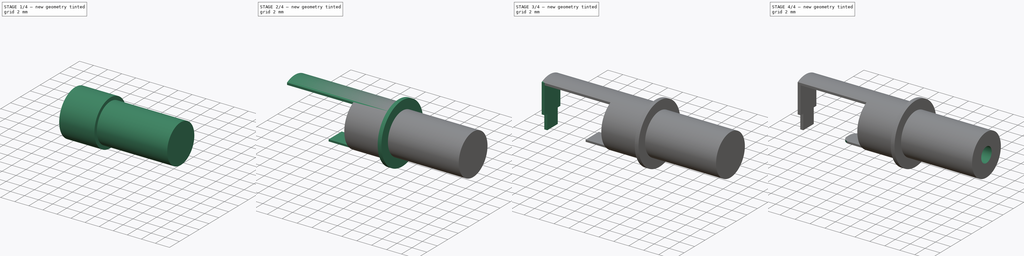
[diagram: build sequence overview — one tinted view per stage of 4, left to right]
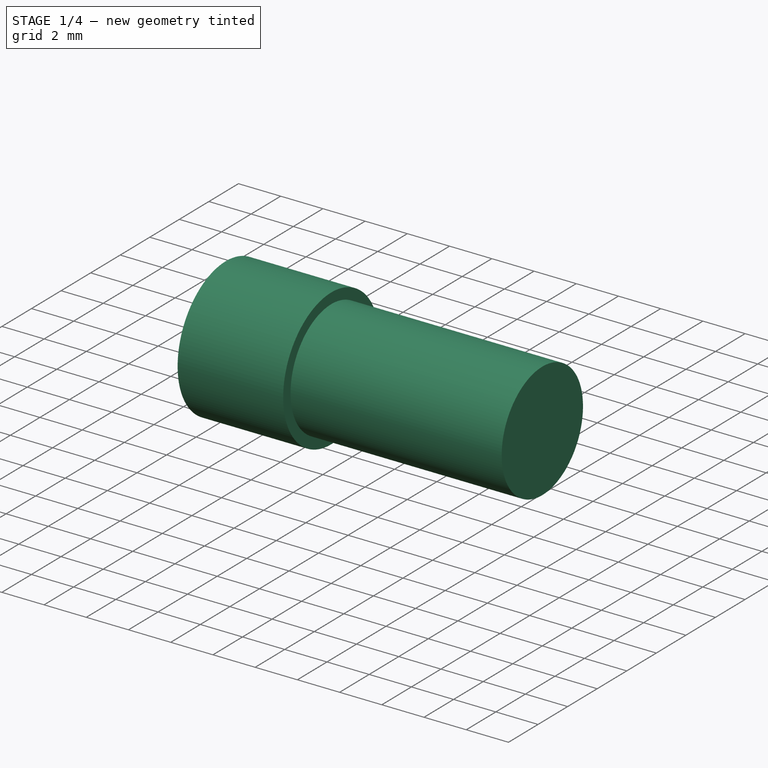
[diagram: stage 1 of 4 — iso view after this stage's code; geometry added in this stage tinted green]
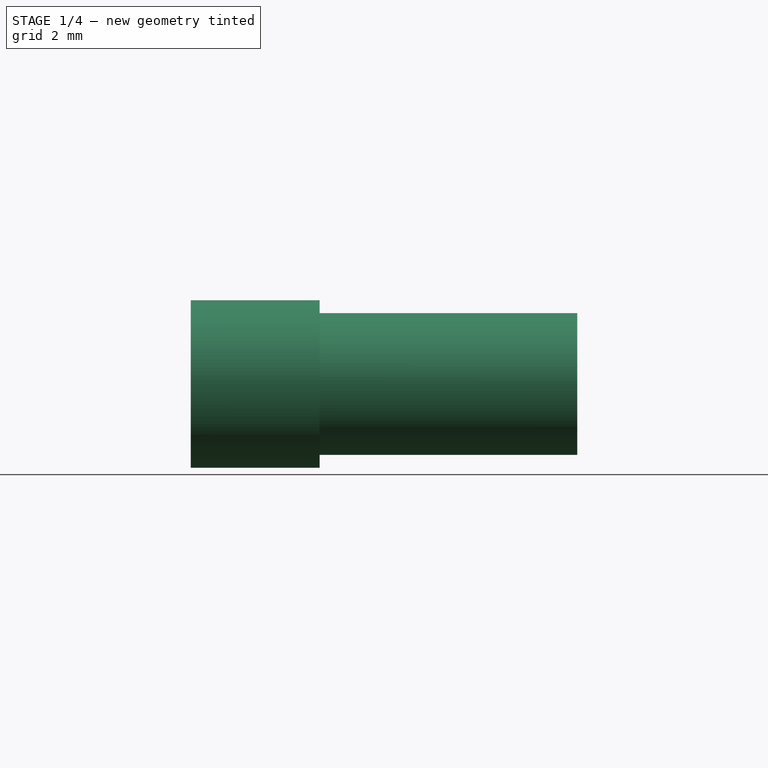
[diagram: stage 1 of 4 — front view after this stage's code; geometry added in this stage tinted green]
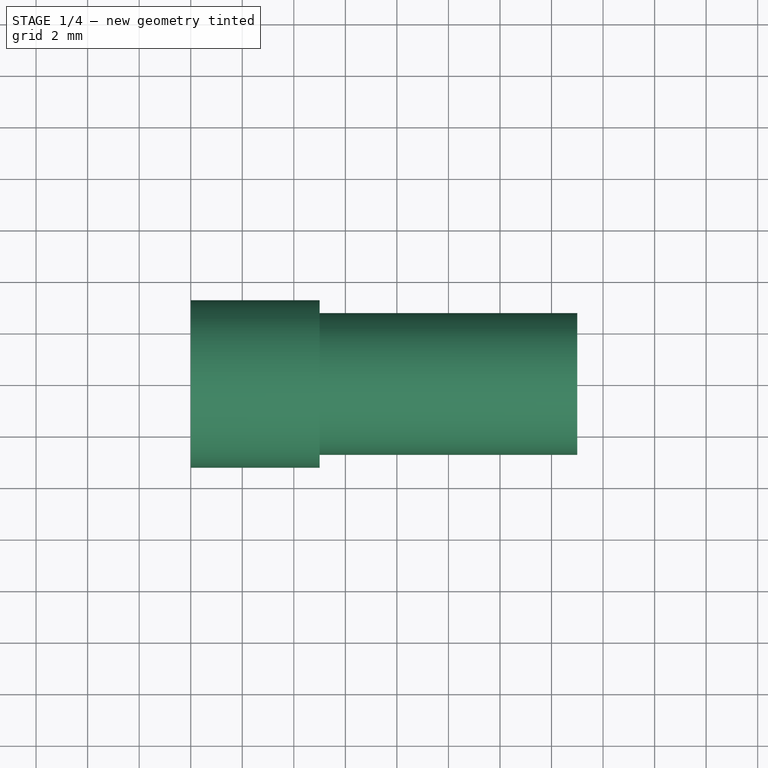
[diagram: stage 1 of 4 — top view after this stage's code; geometry added in this stage tinted green]
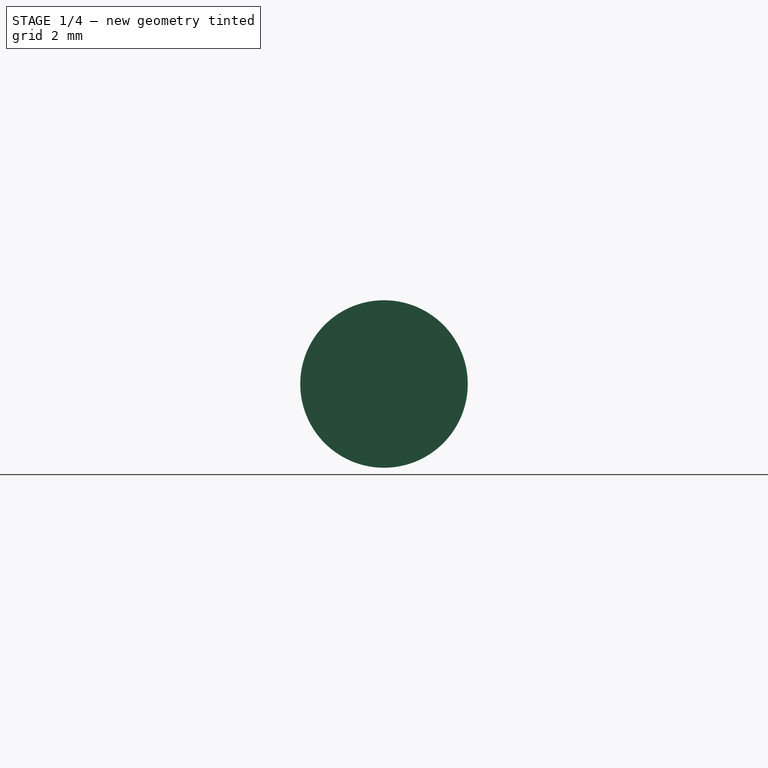
[diagram: stage 1 of 4 — right view after this stage's code; geometry added in this stage tinted green]
FCSTD DOCUMENT  (FreeCAD 1.0R38806 (Git))
Label: barrel_pd
License: All rights reserved
LicenseURL: https://en.wikipedia.org/wiki/All_rights_reserved
objects: Sketcher::SketchObject×9, PartDesign::Pad×8, Part::Feature×4, PartDesign::Pocket×1, PartDesign::Fillet×1, PartDesign::Body×1
note: 53 computed .brp shape members not serialized (recipe doc carries the construction recipe); baked Part::Feature solids carry a one-line shape summary decoded from their .brp

FEATURE [Part::Feature] anr_  label="drill_000"
  shape: bbox 1.02 x 3.02 x 1.6 mm, 10 faces (baked)
FEATURE [Part::Feature] anr_001  label="drill_001"
  shape: bbox 1.02 x 3.02 x 1.6 mm, 10 faces (baked)
FEATURE [Part::Feature] anr_002  label="drill_002"
  shape: bbox 3.02 x 1.02 x 1.6 mm, 10 faces (baked)
FEATURE [Sketcher::SketchObject] Sketch
  ArcFitTolerance = 1e-06
  AttachmentSupport = -> [YZ_Plane001]
  FullyConstrained = true
  MakeInternals = false
  MapMode = 5
  Placement = pos=(0,0,0) rot=(0.57735,0.57735,0.57735;2.0944rad)
  sketch-geometry (1):
    g0: Circle CenterX=0 CenterY=1.4 CenterZ=0 NormalX=0 NormalY=0 NormalZ=1 AngleXU=0 Radius=2.75
  constraints (3):
    c: Diameter(g0) = 5.5
    c: PointOnObject(g0,g-2)
    c: DistanceY(g-1,g0) = 1.4
FEATURE [PartDesign::Pad] Pad
  Direction = (1,0,0)
  Length = 15
  Length2 = 10
  Placement = pos=(0,0,0) rot=(1,1,1;2.0944rad)
  Profile = -> Sketch
  ReferenceAxis = -> Sketch [N_Axis]
  Refine = true
  Suppressed = false
  Type = 0
FEATURE [Sketcher::SketchObject] Sketch001
  ArcFitTolerance = 1e-06
  AttachmentSupport = -> [Pad]
  FullyConstrained = true
  MakeInternals = false
  MapMode = 5
  Placement = pos=(-3e-16,0,0) rot=(0.57735,0.57735,-0.57735;4.18879rad)
  sketch-geometry (1):
    g0: Circle CenterX=0 CenterY=-1.4 CenterZ=0 NormalX=0 NormalY=0 NormalZ=1 AngleXU=0 Radius=3.25
  constraints (3):
    c: Diameter(g0) = 6.5
    c: PointOnObject(g0,g-2)
    c: DistanceY(g0,g-1) = 1.4
FEATURE [PartDesign::Pad] Pad001
  BaseFeature = -> Pad
  Direction = (-1,0,0)
  Length = 5
  Length2 = 10
  Placement = pos=(0,0,0) rot=(1,1,1;2.0944rad)
  Profile = -> Sketch001
  ReferenceAxis = -> Sketch001 [N_Axis]
  Refine = true
  Reversed = true
  Suppressed = false
  Type = 0
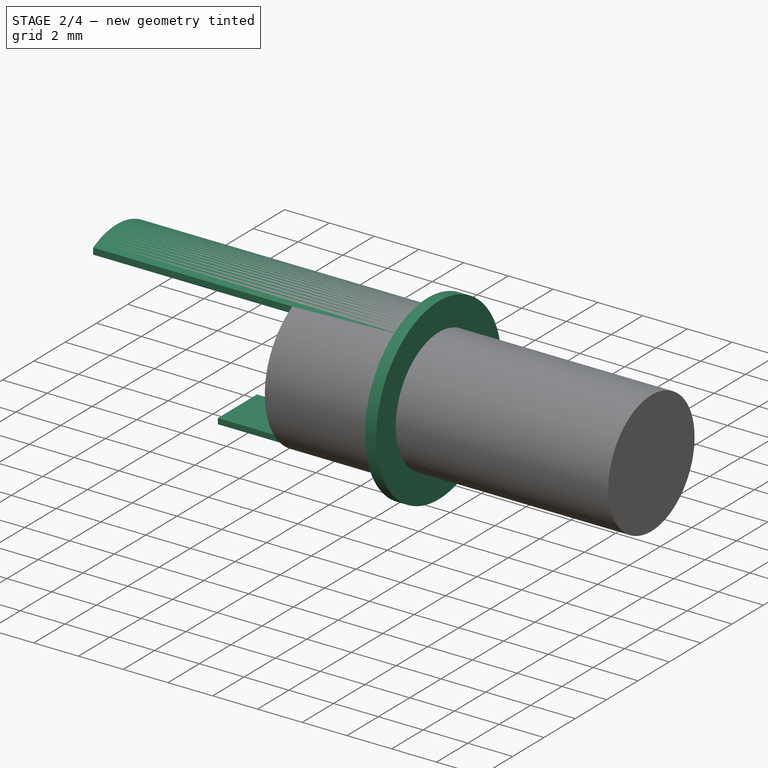
[diagram: stage 2 of 4 — iso view after this stage's code; geometry added in this stage tinted green]
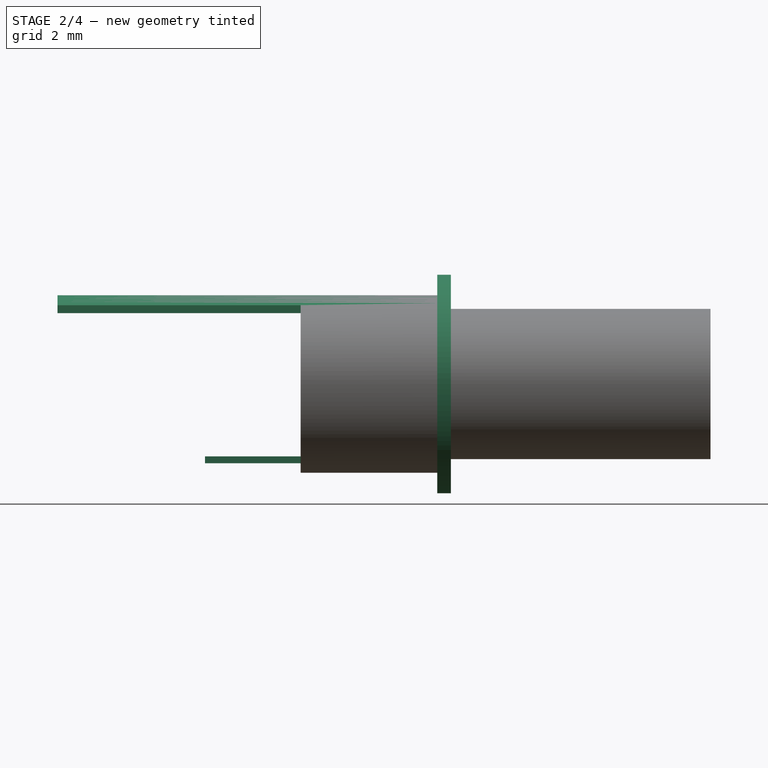
[diagram: stage 2 of 4 — front view after this stage's code; geometry added in this stage tinted green]
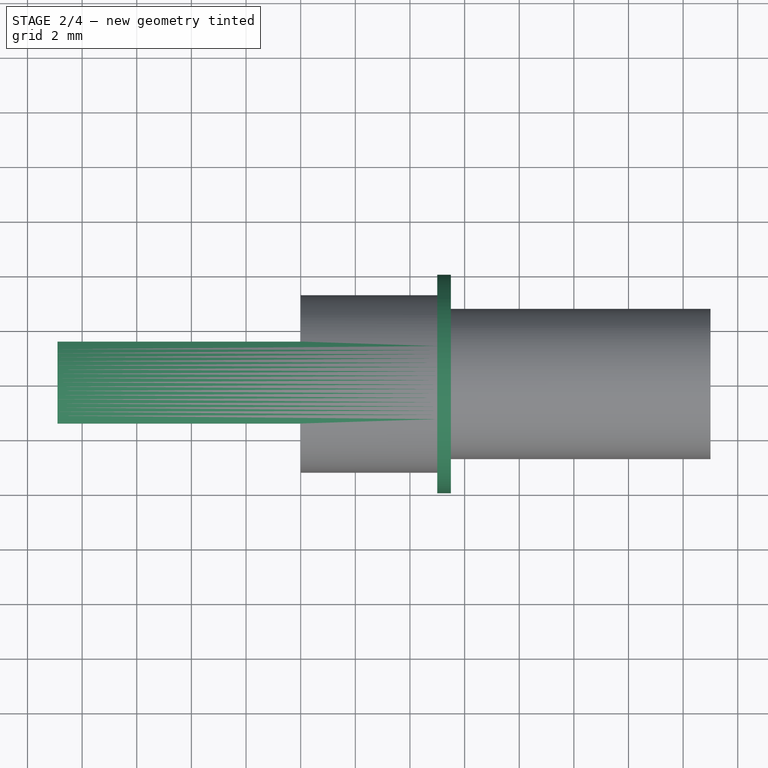
[diagram: stage 2 of 4 — top view after this stage's code; geometry added in this stage tinted green]
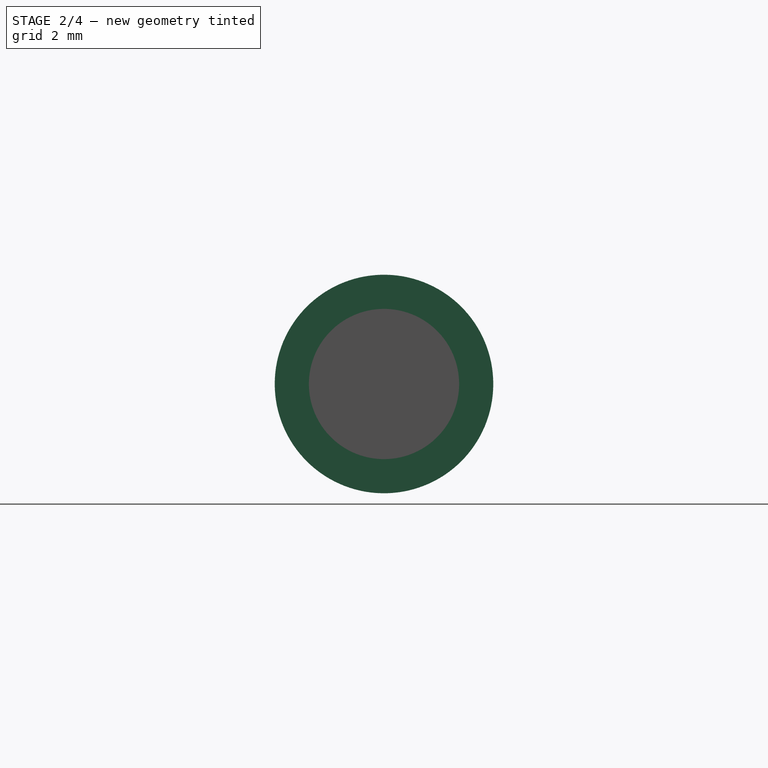
[diagram: stage 2 of 4 — right view after this stage's code; geometry added in this stage tinted green]
FEATURE [Sketcher::SketchObject] Sketch002
  ArcFitTolerance = 1e-06
  AttachmentSupport = -> [Pad001]
  FullyConstrained = true
  MakeInternals = false
  MapMode = 5
  Placement = pos=(15,-6.7e-15,3.3e-15) rot=(0.57735,0.57735,0.57735;2.0944rad)
FEATURE [Sketcher::SketchObject] Sketch003
  ArcFitTolerance = 1e-06
  AttachmentSupport = -> [Pad001]
  FullyConstrained = true
  MakeInternals = false
  MapMode = 5
  Placement = pos=(5,-1.1e-15,6e-16) rot=(0.57735,0.57735,0.57735;2.0944rad)
  sketch-geometry (1):
    g0: Circle CenterX=0 CenterY=1.4 CenterZ=0 NormalX=0 NormalY=0 NormalZ=1 AngleXU=0 Radius=4
  constraints (3):
    c: Diameter(g0) = 8
    c: PointOnObject(g0,g-2)
    c: DistanceY(g-1,g0) = 1.4
FEATURE [PartDesign::Pad] Pad002
  BaseFeature = -> Pad001
  Direction = (1,0,0)
  Length = 0.5
  Length2 = 10
  Placement = pos=(0,0,0) rot=(1,1,1;2.0944rad)
  Profile = -> Sketch003
  ReferenceAxis = -> Sketch003 [N_Axis]
  Refine = true
  Suppressed = false
  Type = 0
FEATURE [Sketcher::SketchObject] Sketch004
  ArcFitTolerance = 1e-06
  AttachmentSupport = -> [Pad002]
  FullyConstrained = true
  MakeInternals = false
  MapMode = 5
  Placement = pos=(-9e-16,0,0) rot=(0.57735,0.57735,-0.57735;4.18879rad)
  sketch-geometry (4):
    g0: LineSegment StartX=-1.25 StartY=1.25 StartZ=0 EndX=1.25 EndY=1.25 EndZ=0
    g1: LineSegment StartX=1.25 StartY=1.25 StartZ=0 EndX=1.25 EndY=1.5 EndZ=0
    g2: LineSegment StartX=1.25 StartY=1.5 StartZ=0 EndX=-1.25 EndY=1.5 EndZ=0
    g3: LineSegment StartX=-1.25 StartY=1.5 StartZ=0 EndX=-1.25 EndY=1.25 EndZ=0
  constraints (12):
    c: Coincident(g0,g1)
    c: Coincident(g1,g2)
    c: Coincident(g2,g3)
    c: Coincident(g3,g0)
    c: Horizontal(g0)
    c: Horizontal(g2)
    c: Vertical(g1)
    c: Vertical(g3)
    c: Distance(g1,g3) = 2.5
    c: Distance(g0,g2) = 0.25
    c: DistanceX(g2,g-1) = 1.25
    c: DistanceY(g-1,g0) = 1.25
FEATURE [PartDesign::Pad] Pad003
  BaseFeature = -> Pad002
  Direction = (-1,0,0)
  Length = 3.5
  Length2 = 10
  Placement = pos=(0,0,0) rot=(1,1,1;2.0944rad)
  Profile = -> Sketch004
  ReferenceAxis = -> Sketch004 [N_Axis]
  Refine = true
  Suppressed = false
  Type = 0
FEATURE [Sketcher::SketchObject] Sketch005
  ArcFitTolerance = 1e-06
  AttachmentSupport = -> [Pad003]
  FullyConstrained = true
  MakeInternals = false
  MapMode = 5
  Placement = pos=(-1.2e-15,0,0) rot=(0.57735,0.57735,-0.57735;4.18879rad)
  sketch-geometry (4):
    g0: ArcOfCircle CenterX=0 CenterY=-1.4 CenterZ=0 NormalX=0 NormalY=0 NormalZ=1 AngleXU=0 Radius=3 StartAngle=4.19007 EndAngle=5.23727
    g1: ArcOfCircle CenterX=0 CenterY=-1.4 CenterZ=0 NormalX=0 NormalY=0 NormalZ=1 AngleXU=0 Radius=3.25 StartAngle=4.23382 EndAngle=5.19327
    g2: LineSegment StartX=-1.49666 StartY=-4 StartZ=0 EndX=-1.49666 EndY=-4.28487 EndZ=0
    g3: LineSegment StartX=1.50333 StartY=-4.2814 StartZ=0 EndX=1.50333 EndY=-3.99615 EndZ=0
  constraints (14):
    c: PointOnObject(g0,g-2)
    c: DistanceY(g0,g-1) = 1.4
    c: Diameter(g0) = 6
    c: PointOnObject(g1,g-2)
    c: DistanceY(g1,g-1) = 1.4
    c: Diameter(g1) = 6.5
    c: Vertical(g2)
    c: Vertical(g3)
    c: Coincident(g1,g3)
    c: Coincident(g1,g2)
    c: Coincident(g0,g3)
    c: Coincident(g0,g2)
    c: Angle(g0) = 1.0472
    c: DistanceY(g0,g-1) = 4
FEATURE [PartDesign::Pad] Pad004
  BaseFeature = -> Pad003
  Direction = (-1,0,0)
  Length = 8.9
  Length2 = 10
  Placement = pos=(0,0,0) rot=(1,1,1;2.0944rad)
  Profile = -> Sketch005
  ReferenceAxis = -> Sketch005 [N_Axis]
  Refine = true
  Suppressed = false
  Type = 0
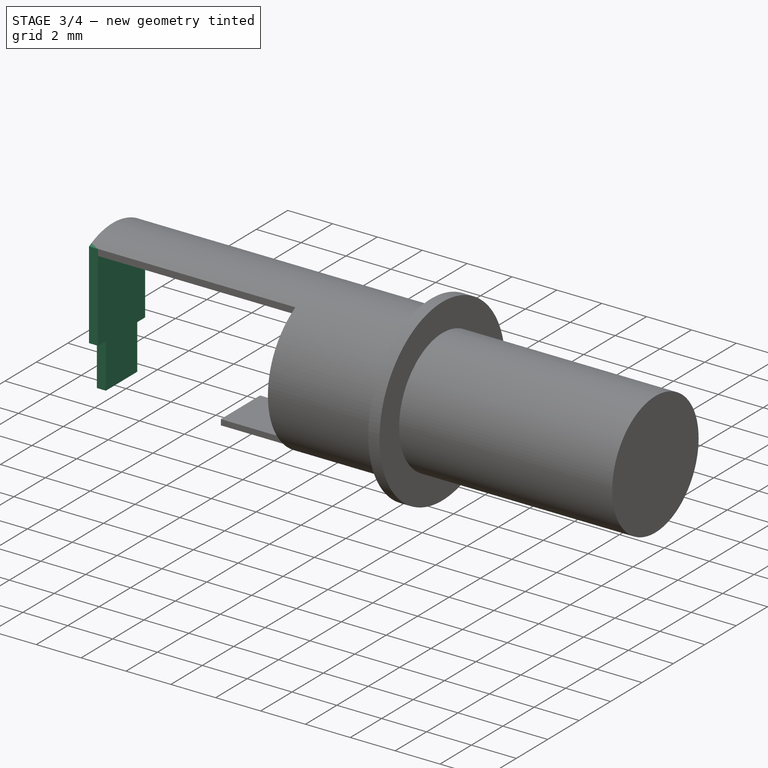
[diagram: stage 3 of 4 — iso view after this stage's code; geometry added in this stage tinted green]
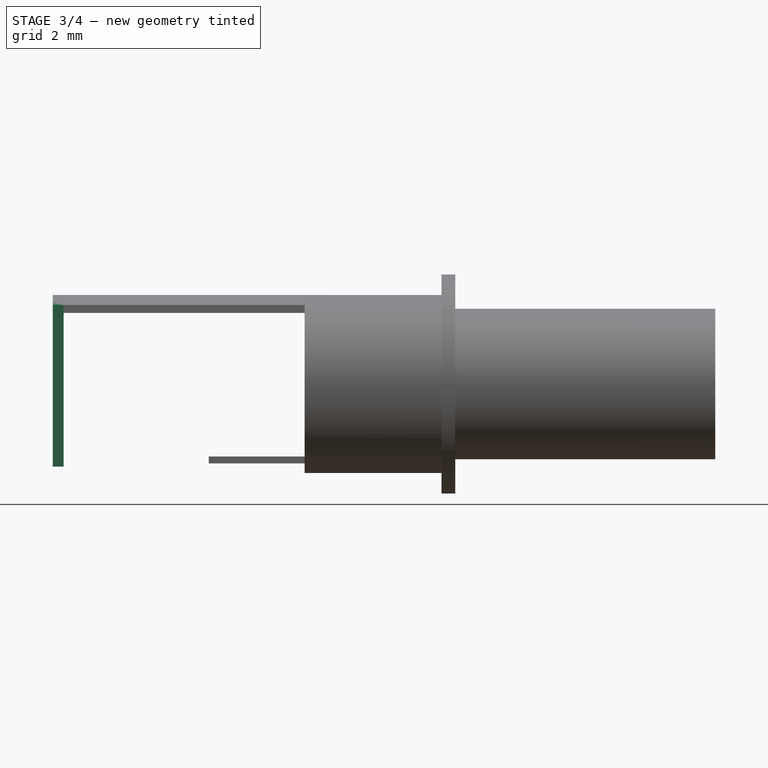
[diagram: stage 3 of 4 — front view after this stage's code; geometry added in this stage tinted green]
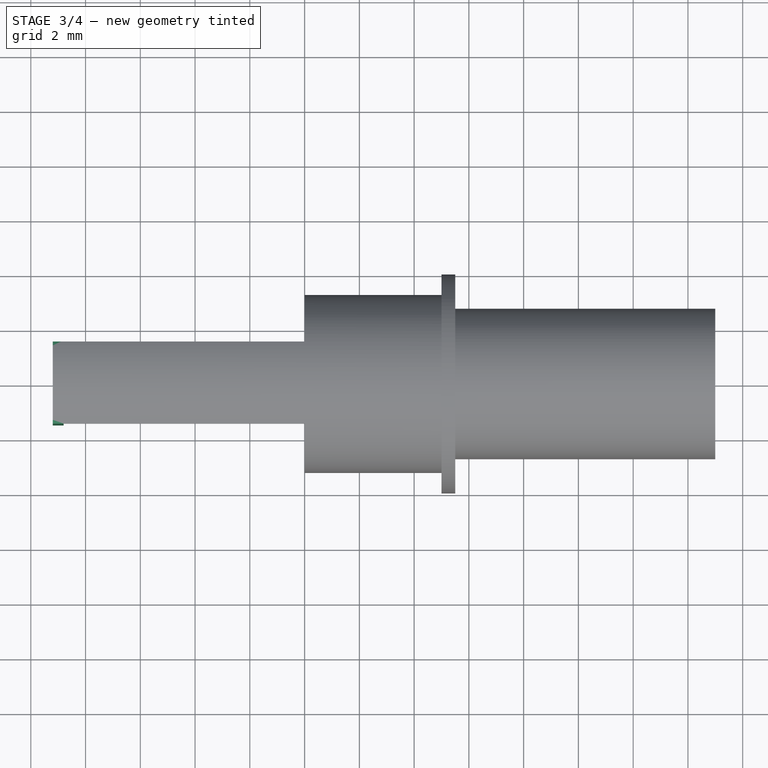
[diagram: stage 3 of 4 — top view after this stage's code; geometry added in this stage tinted green]
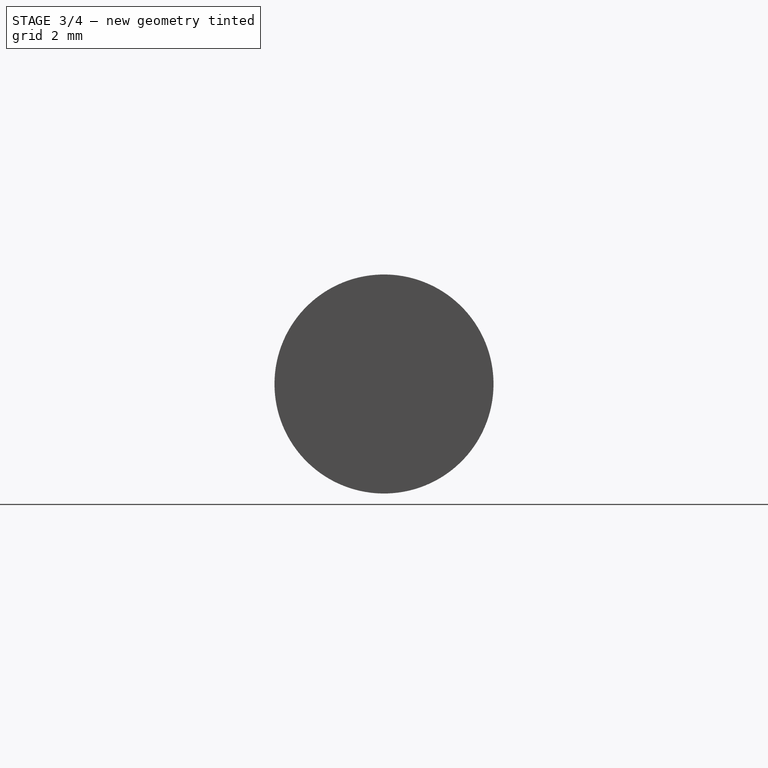
[diagram: stage 3 of 4 — right view after this stage's code; geometry added in this stage tinted green]
FEATURE [Sketcher::SketchObject] Sketch006
  ArcFitTolerance = 1e-06
  AttachmentSupport = -> [Pad004]
  FullyConstrained = true
  MakeInternals = false
  MapMode = 5
  Placement = pos=(-8.9,2e-15,-1e-15) rot=(0.57735,0.57735,-0.57735;4.18879rad)
  sketch-geometry (4):
    g0: ArcOfCircle CenterX=0 CenterY=-1.4 CenterZ=0 NormalX=0 NormalY=0 NormalZ=1 AngleXU=0 Radius=3.25 StartAngle=4.23271 EndAngle=5.19212
    g1: LineSegment StartX=1.5 StartY=-4.28314 StartZ=0 EndX=1.5 EndY=-0.383215 EndZ=0
    g2: LineSegment StartX=1.5 StartY=-0.383215 StartZ=0 EndX=-1.49986 EndY=-0.383215 EndZ=0
    g3: LineSegment StartX=-1.49986 StartY=-0.383215 StartZ=0 EndX=-1.49986 EndY=-4.28322 EndZ=0
  constraints (13):
    c: Diameter(g0) = 6.5
    c: PointOnObject(g0,g-2)
    c: DistanceY(g0,g-1) = 1.4
    c: Coincident(g1,g2)
    c: Coincident(g2,g3)
    c: Vertical(g1)
    c: Vertical(g3)
    c: Horizontal(g2)
    c: DistanceX(g-1,g1) = 1.5
    c: Coincident(g0,g1)
    c: Coincident(g0,g3)
    c: Angle(g0) = 0.959407
    c: DistanceY(g3,g3) = 3.9
FEATURE [PartDesign::Pad] Pad005
  BaseFeature = -> Pad004
  Direction = (-1,0,0)
  Length = 0.3
  Length2 = 10
  Placement = pos=(0,0,0) rot=(1,1,1;2.0944rad)
  Profile = -> Sketch006
  ReferenceAxis = -> Sketch006 [N_Axis]
  Refine = true
  Suppressed = false
  Type = 0
FEATURE [PartDesign::Pad] Pad006
  BaseFeature = -> Pad005
  Direction = (1,0,3e-16)
  Length = 0.1
  Length2 = 10
  Placement = pos=(0,0,0) rot=(1,1,1;2.0944rad)
  Profile = -> Pad005 [Face10]
  Refine = true
  Suppressed = false
  Type = 0
FEATURE [Sketcher::SketchObject] Sketch007
  ArcFitTolerance = 1e-06
  AttachmentSupport = -> [Pad006]
  FullyConstrained = true
  MakeInternals = false
  MapMode = 5
  Placement = pos=(0,3e-16,0.383215) rot=(0.707107,0.707107,0;3.14159rad)
  sketch-geometry (4):
    g0: LineSegment StartX=-1 StartY=-8.8 StartZ=0 EndX=-1 EndY=-9.2 EndZ=0
    g1: LineSegment StartX=-1 StartY=-9.2 StartZ=0 EndX=1 EndY=-9.2 EndZ=0
    g2: LineSegment StartX=1 StartY=-9.2 StartZ=0 EndX=1 EndY=-8.8 EndZ=0
    g3: LineSegment StartX=1 StartY=-8.8 StartZ=0 EndX=-1 EndY=-8.8 EndZ=0
  constraints (12):
    c: Coincident(g0,g1)
    c: Coincident(g1,g2)
    c: Coincident(g2,g3)
    c: Coincident(g3,g0)
    c: Vertical(g0)
    c: Vertical(g2)
    c: Horizontal(g1)
    c: Horizontal(g3)
    c: Distance(g0,g2) = 2
    c: Distance(g1,g3) = 0.4
    c: DistanceY(g0,g-1) = 8.8
    c: DistanceX(g0,g-1) = 1
FEATURE [PartDesign::Pad] Pad007
  BaseFeature = -> Pad006
  Direction = (0,0,-1)
  Length = 2
  Length2 = 10
  Placement = pos=(0,0,0) rot=(1,1,1;2.0944rad)
  Profile = -> Sketch007
  ReferenceAxis = -> Sketch007 [N_Axis]
  Refine = true
  Suppressed = false
  Type = 0
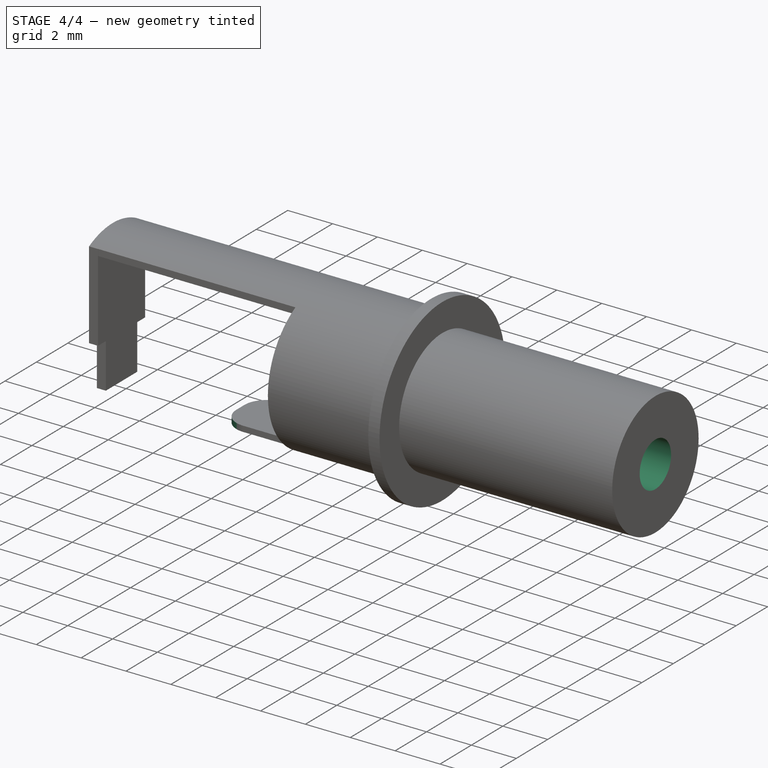
[diagram: stage 4 of 4 — iso view after this stage's code; geometry added in this stage tinted green]
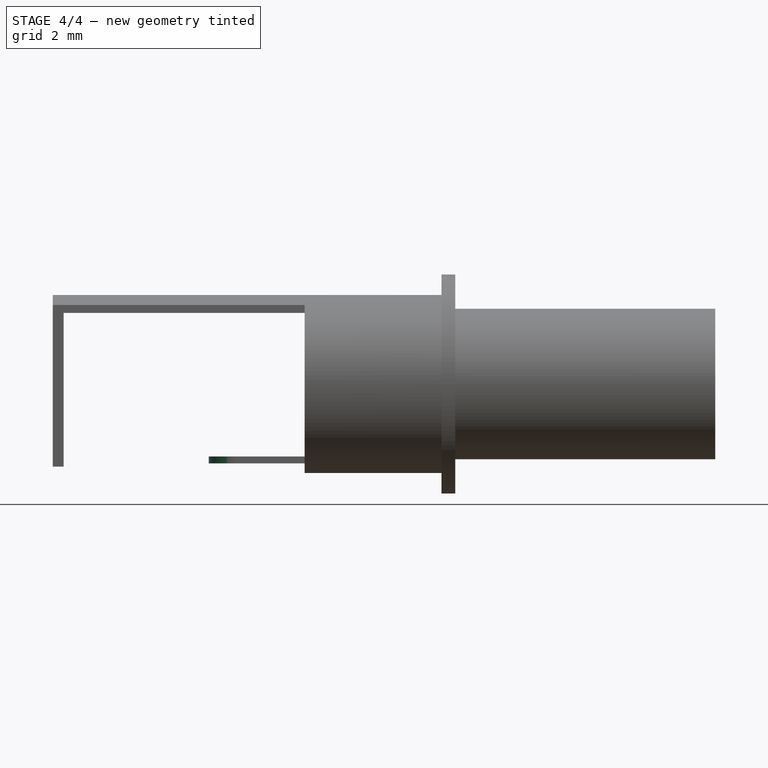
[diagram: stage 4 of 4 — front view after this stage's code; geometry added in this stage tinted green]
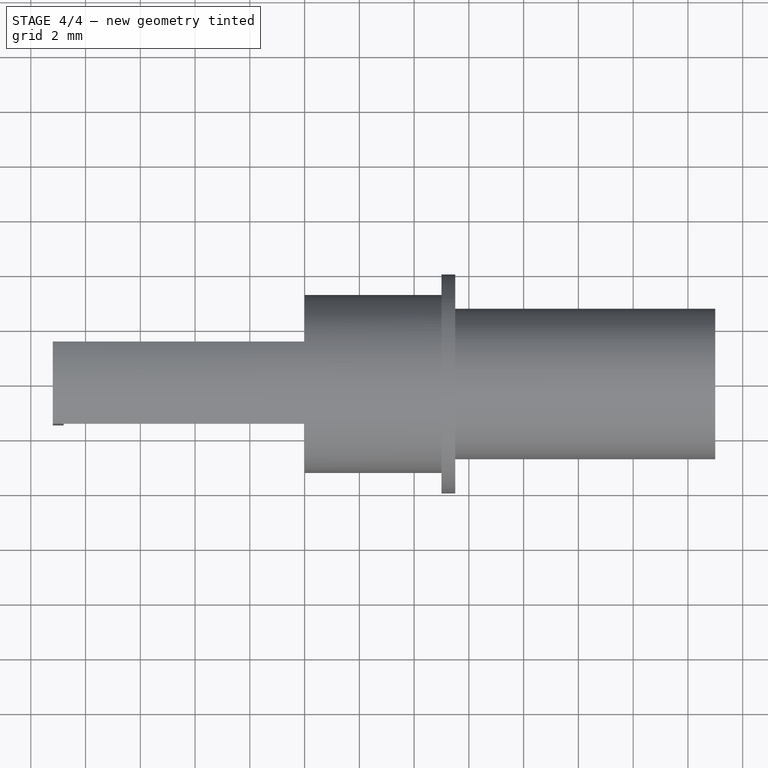
[diagram: stage 4 of 4 — top view after this stage's code; geometry added in this stage tinted green]
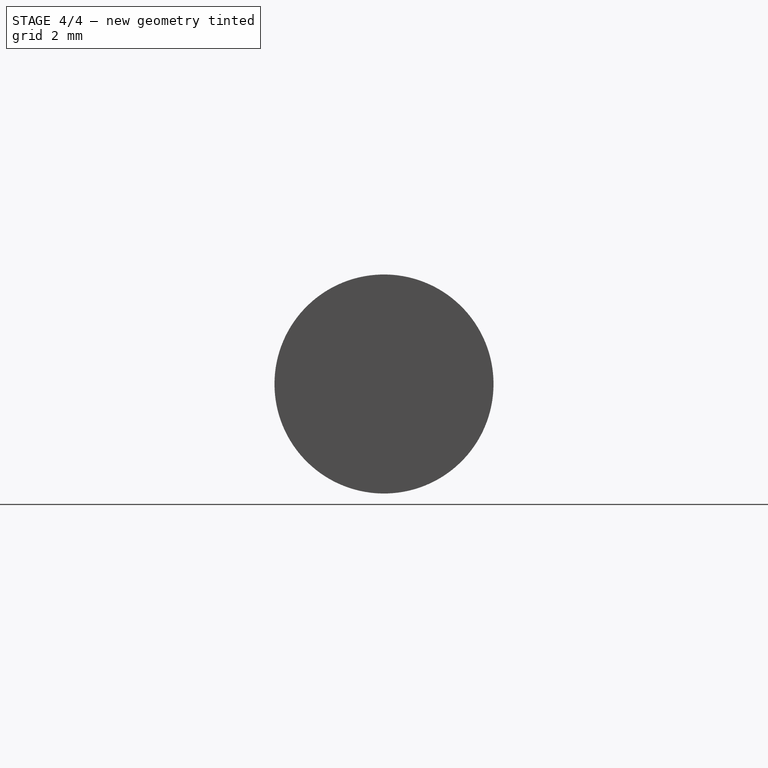
[diagram: stage 4 of 4 — right view after this stage's code; geometry added in this stage tinted green]
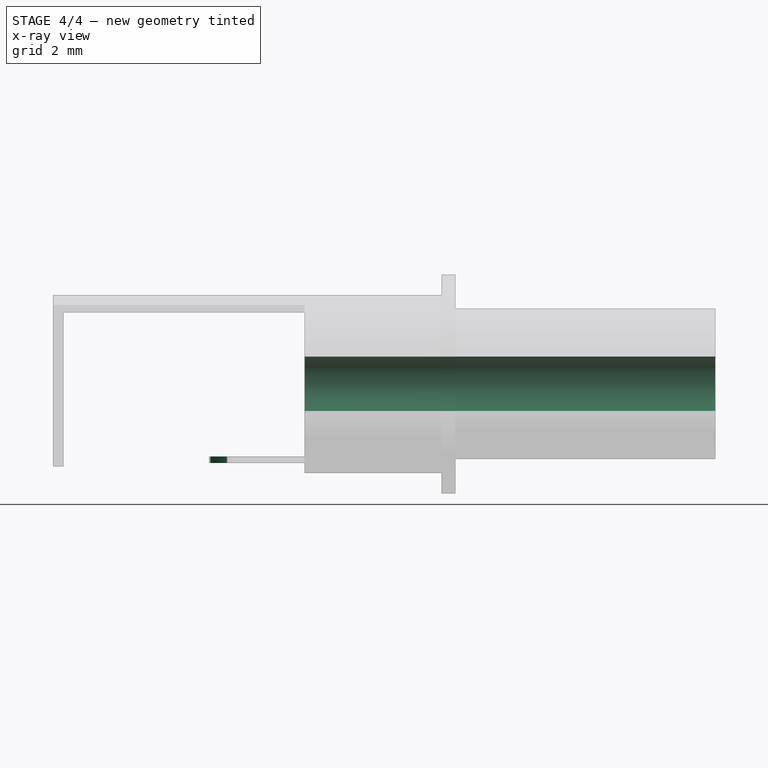
[diagram: stage 4 of 4 — x-ray composite at the front view; earlier geometry ghosted, this stage's added geometry solid]
FEATURE [Sketcher::SketchObject] Sketch008
  ArcFitTolerance = 1e-06
  AttachmentSupport = -> [Pad007]
  FullyConstrained = true
  MakeInternals = false
  MapMode = 5
  Placement = pos=(15,-2.66e-14,1.33e-14) rot=(0.57735,0.57735,0.57735;2.0944rad)
  sketch-geometry (1):
    g0: Circle CenterX=0 CenterY=1.4 CenterZ=0 NormalX=0 NormalY=0 NormalZ=1 AngleXU=0 Radius=1
  constraints (3):
    c: Diameter(g0) = 2
    c: PointOnObject(g0,g-2)
    c: DistanceY(g-1,g0) = 1.4
FEATURE [PartDesign::Pocket] Pocket
  BaseFeature = -> Pad007
  Direction = (-1,1.8e-15,0)
  Length = 5
  Length2 = 5
  Placement = pos=(0,0,0) rot=(1,1,1;2.0944rad)
  Profile = -> Sketch008
  ReferenceAxis = -> Sketch008 [N_Axis]
  Refine = true
  Suppressed = false
  Type = 2
FEATURE [PartDesign::Fillet] Fillet
  Base = -> Pocket [Edge29,Edge34]
  BaseFeature = -> Pocket
  Placement = pos=(0,0,0) rot=(1,1,1;2.0944rad)
  Radius = 1
  Refine = true
  SupportTransform = false
  Suppressed = false
  UseAllEdges = false
FEATURE [PartDesign::Body] Body001  label="Body001_"
  AllowCompound = false
  Group = -> [Sketch,Pad,Sketch001,Pad001,Sketch002,Sketch003,Pad002,Sketch004,Pad003,Sketch005,Pad004,Sketch006,Pad005,Pad006,Sketch007,Pad007,Sketch008,Pocket,Fillet]
  Origin = -> Origin001
  Placement = pos=(3,0,-0.35) rot=(0,0,1;0rad)
  Tip = -> Fillet
FEATURE [Part::Feature] Shape  label="Body001"
  shape: bbox 24.2 x 8 x 8 mm, 28 faces (baked)
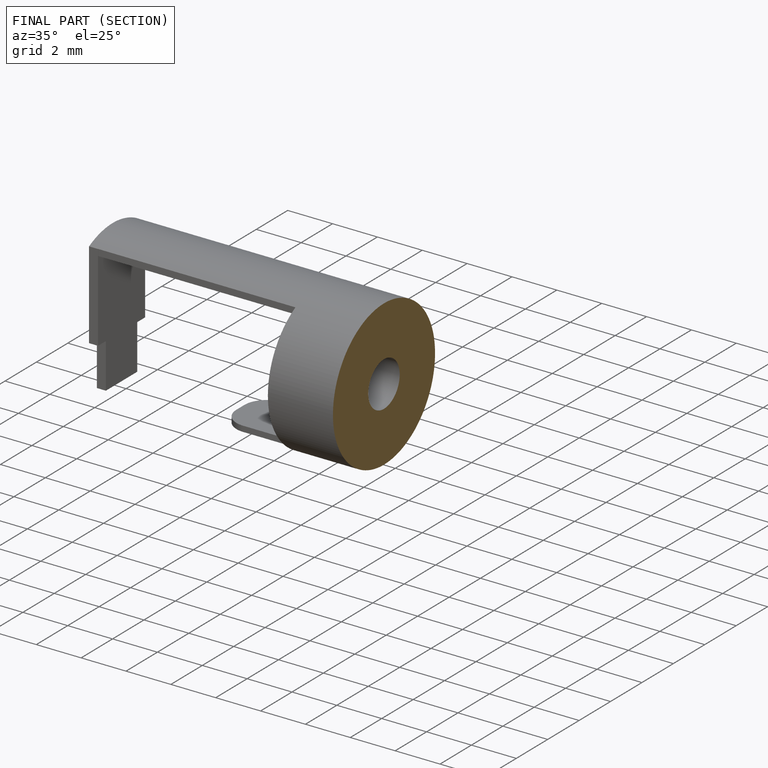
[diagram: finished part — half-section view (interior)]
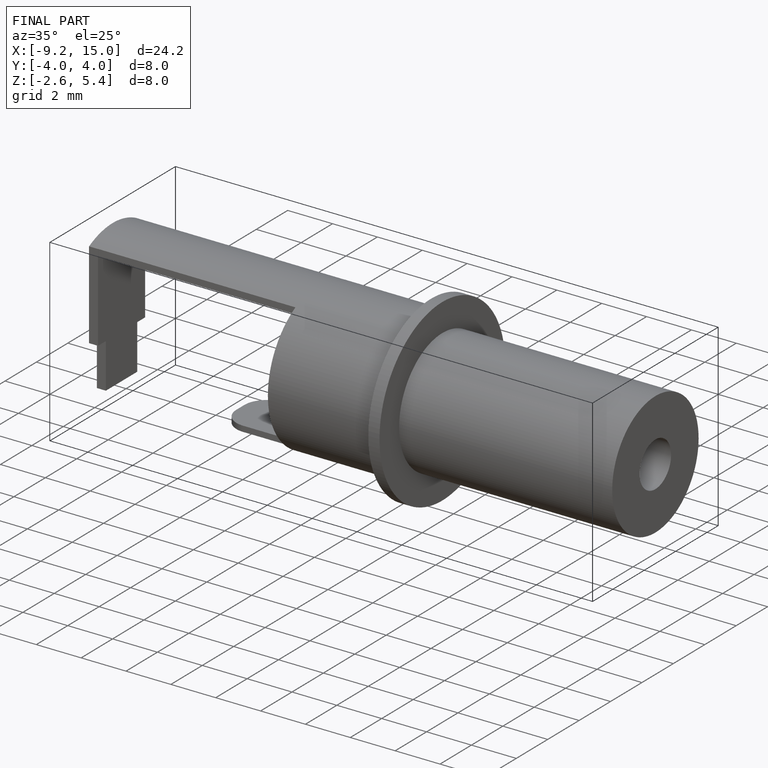
[diagram: finished part — iso view with bounding-box wireframe]
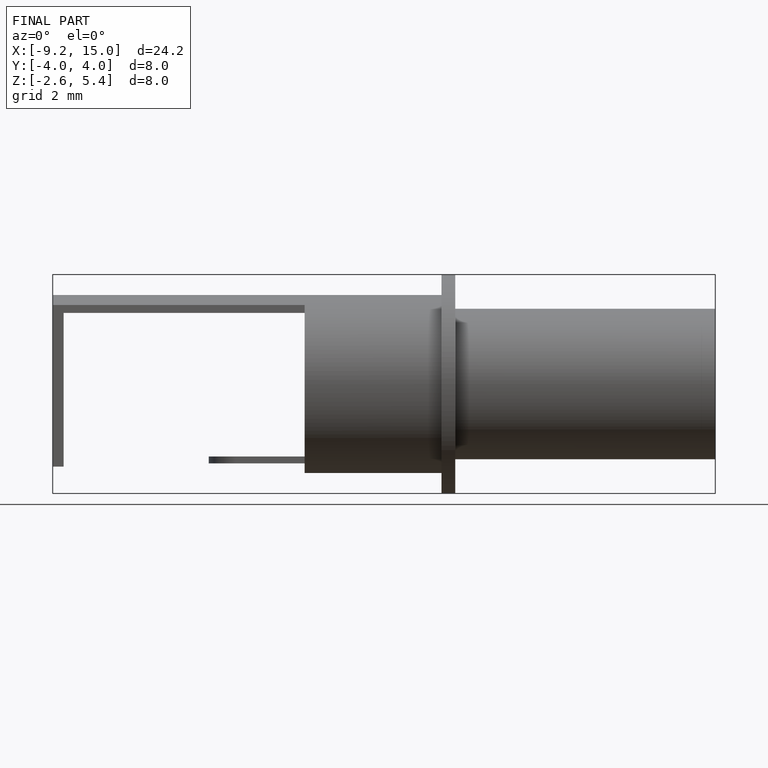
[diagram: finished part — front view with bounding-box wireframe]
